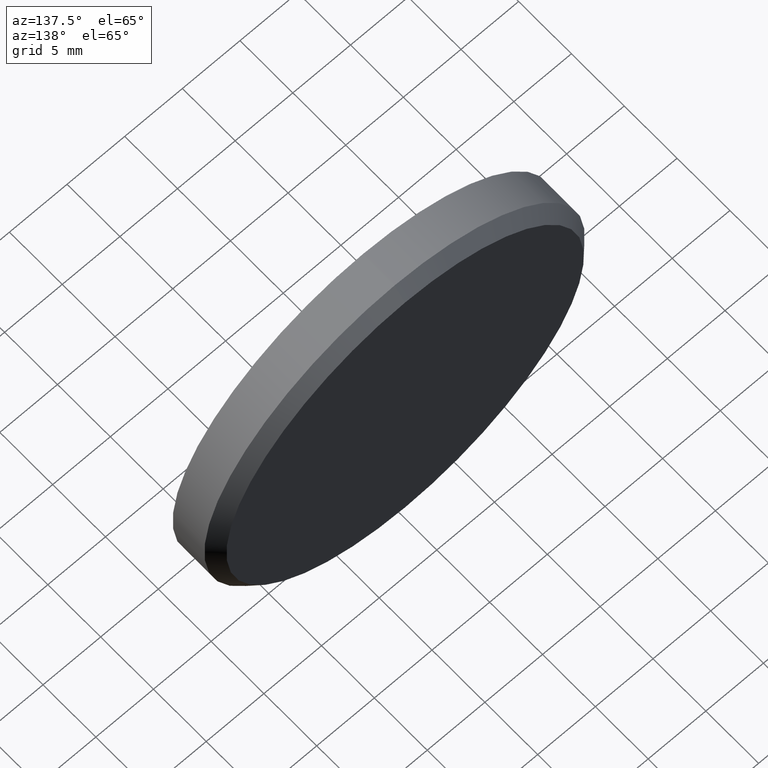
[diagram: clean part render]
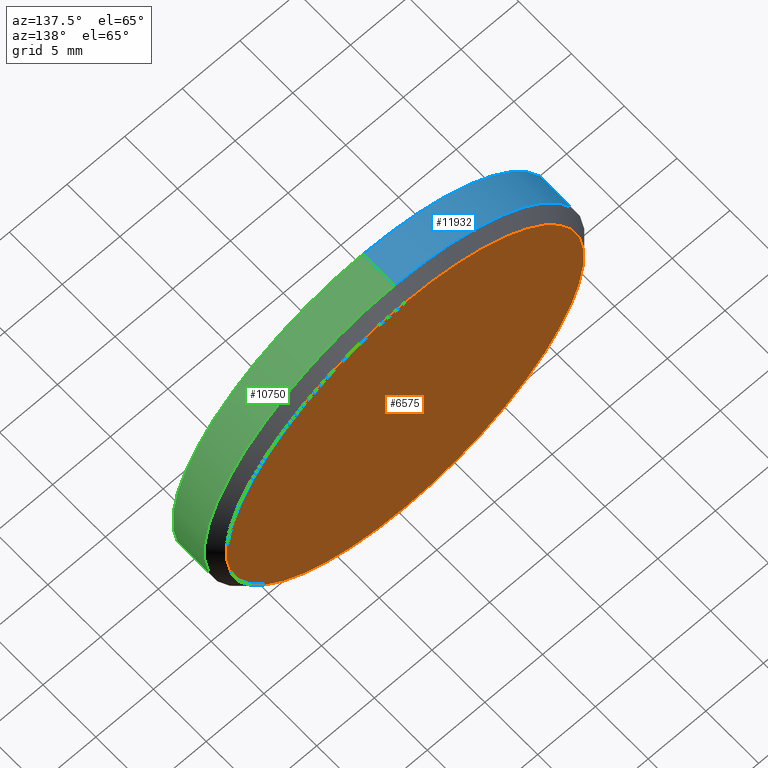
[diagram: same view with three faces highlighted in distinct colors, each labeled with its STEP entity id]
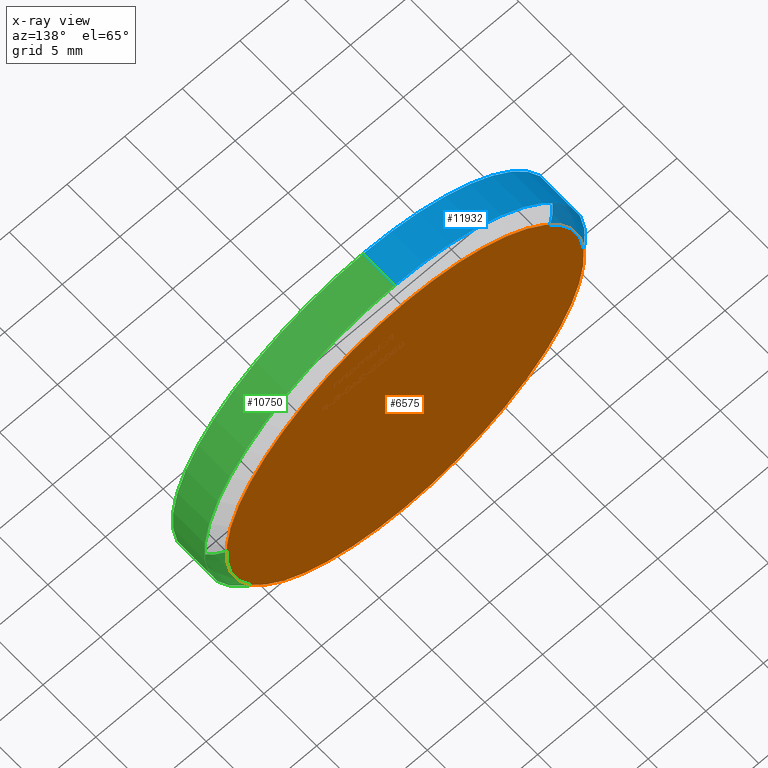
[diagram: x-ray of the same camera — body ghosted, the three highlighted faces saturated]
A machine part, auxiliary view with three faces highlighted in distinct colors.
The next image is the same camera in x-ray (body ghosted, the three faces saturated) — at least one of them is partly hidden behind the body in this view.
Their STEP definitions:

[orange] entity #6575 — the highlighted planar face has unit normal (0, 1, 0).
#866 = EDGE_LOOP ( 'NONE', ( #5701, #6841 ) ) ;
#1632 = FACE_OUTER_BOUND ( 'NONE', #866, .T. ) ;
#2034 = VERTEX_POINT ( 'NONE', #3483 ) ;
#3166 = CIRCLE ( 'NONE', #11136, 15.50000000000000000 ) ;
#3483 = CARTESIAN_POINT ( 'NONE',  ( 0.000000000000000000, 2.000000000000000000, -15.50000000000000000 ) ) ;
#4833 = VERTEX_POINT ( 'NONE', #10451 ) ;
#5102 = EDGE_CURVE ( 'NONE', #2034, #4833, #3166, .T. ) ;
#5701 = ORIENTED_EDGE ( 'NONE', *, *, #5102, .T. ) ;
#6124 = CIRCLE ( 'NONE', #11351, 15.50000000000000000 ) ;
#6575 = ADVANCED_FACE ( 'NONE', ( #1632 ), #13298, .T. ) ;
#6841 = ORIENTED_EDGE ( 'NONE', *, *, #11051, .T. ) ;
#7210 = CARTESIAN_POINT ( 'NONE',  ( 0.000000000000000000, 2.000000000000000000, 0.000000000000000000 ) ) ;
#8338 = DIRECTION ( 'NONE',  ( 0.000000000000000000, -0.000000000000000000, 1.000000000000000000 ) ) ;
#9045 = CARTESIAN_POINT ( 'NONE',  ( 0.000000000000000000, 2.000000000000000000, 0.000000000000000000 ) ) ;
#10272 = DIRECTION ( 'NONE',  ( 0.000000000000000000, 1.000000000000000000, 0.000000000000000000 ) ) ;
#10451 = CARTESIAN_POINT ( 'NONE',  ( 1.959434878635765526E-15, 2.000000000000000000, 15.50000000000000000 ) ) ;
#10667 = DIRECTION ( 'NONE',  ( 0.000000000000000000, 1.000000000000000000, 0.000000000000000000 ) ) ;
#11051 = EDGE_CURVE ( 'NONE', #4833, #2034, #6124, .T. ) ;
#11136 = AXIS2_PLACEMENT_3D ( 'NONE', #9045, #10272, #11490 ) ;
#11351 = AXIS2_PLACEMENT_3D ( 'NONE', #15220, #11505, #13828 ) ;
#11490 = DIRECTION ( 'NONE',  ( 0.000000000000000000, 0.000000000000000000, 1.000000000000000000 ) ) ;
#11505 = DIRECTION ( 'NONE',  ( 0.000000000000000000, 1.000000000000000000, 0.000000000000000000 ) ) ;
#13298 = PLANE ( 'NONE',  #14294 ) ;
#13828 = DIRECTION ( 'NONE',  ( 0.000000000000000000, 0.000000000000000000, 1.000000000000000000 ) ) ;
#14294 = AXIS2_PLACEMENT_3D ( 'NONE', #7210, #10667, #8338 ) ;
#15220 = CARTESIAN_POINT ( 'NONE',  ( 0.000000000000000000, 2.000000000000000000, 0.000000000000000000 ) ) ;

[blue] entity #11932 — the highlighted cylindrical surface (partial cylindrical patch) has radius 16.5 mm, axis along (-0, -1, -0).
#707 = CARTESIAN_POINT ( 'NONE',  ( 2.020667218593133100E-15, 0.9999999999999922284, 16.50000000000000000 ) ) ;
#907 = ORIENTED_EDGE ( 'NONE', *, *, #2067, .T. ) ;
#1052 = ORIENTED_EDGE ( 'NONE', *, *, #12245, .F. ) ;
#1696 = AXIS2_PLACEMENT_3D ( 'NONE', #13502, #13355, #14630 ) ;
#2067 = EDGE_CURVE ( 'NONE', #10124, #15654, #7557, .T. ) ;
#2292 = CARTESIAN_POINT ( 'NONE',  ( 0.000000000000000000, 2.000000000000000000, 0.000000000000000000 ) ) ;
#2557 = ORIENTED_EDGE ( 'NONE', *, *, #4967, .T. ) ;
#2670 = DIRECTION ( 'NONE',  ( -0.000000000000000000, -1.000000000000000000, -0.000000000000000000 ) ) ;
#3009 = AXIS2_PLACEMENT_3D ( 'NONE', #2292, #7020, #9397 ) ;
#3643 = VECTOR ( 'NONE', #12460, 1000.000000000000000 ) ;
#4967 = EDGE_CURVE ( 'NONE', #7832, #10124, #14922, .T. ) ;
#5892 = CARTESIAN_POINT ( 'NONE',  ( 2.020667218593133100E-15, -2.000000000000000000, 16.50000000000000000 ) ) ;
#6367 = CARTESIAN_POINT ( 'NONE',  ( 2.020667218593133100E-15, 2.000000000000000000, 16.50000000000000000 ) ) ;
#6436 = DIRECTION ( 'NONE',  ( 0.000000000000000000, 0.000000000000000000, 1.000000000000000000 ) ) ;
#6480 = CYLINDRICAL_SURFACE ( 'NONE', #3009, 16.50000000000000000 ) ;
#6808 = EDGE_LOOP ( 'NONE', ( #1052, #2557, #907, #8661 ) ) ;
#7020 = DIRECTION ( 'NONE',  ( -0.000000000000000000, -1.000000000000000000, -0.000000000000000000 ) ) ;
#7555 = CARTESIAN_POINT ( 'NONE',  ( 0.000000000000000000, 2.000000000000000000, -16.50000000000000000 ) ) ;
#7557 = LINE ( 'NONE', #7555, #10989 ) ;
#7832 = VERTEX_POINT ( 'NONE', #707 ) ;
#8661 = ORIENTED_EDGE ( 'NONE', *, *, #15160, .T. ) ;
#8762 = DIRECTION ( 'NONE',  ( 0.000000000000000000, 1.000000000000000000, 0.000000000000000000 ) ) ;
#9397 = DIRECTION ( 'NONE',  ( 0.000000000000000000, 0.000000000000000000, -1.000000000000000000 ) ) ;
#9718 = FACE_OUTER_BOUND ( 'NONE', #6808, .T. ) ;
#10071 = CARTESIAN_POINT ( 'NONE',  ( 0.000000000000000000, -2.000000000000000000, -16.50000000000000000 ) ) ;
#10124 = VERTEX_POINT ( 'NONE', #14463 ) ;
#10989 = VECTOR ( 'NONE', #2670, 1000.000000000000000 ) ;
#11282 = VERTEX_POINT ( 'NONE', #5892 ) ;
#11932 = ADVANCED_FACE ( 'NONE', ( #9718 ), #6480, .T. ) ;
#12245 = EDGE_CURVE ( 'NONE', #7832, #11282, #14458, .T. ) ;
#12460 = DIRECTION ( 'NONE',  ( -0.000000000000000000, -1.000000000000000000, -0.000000000000000000 ) ) ;
#12476 = CARTESIAN_POINT ( 'NONE',  ( 0.000000000000000000, -2.000000000000000000, 0.000000000000000000 ) ) ;
#12718 = CIRCLE ( 'NONE', #12889, 16.50000000000000000 ) ;
#12889 = AXIS2_PLACEMENT_3D ( 'NONE', #12476, #8762, #6436 ) ;
#13355 = DIRECTION ( 'NONE',  ( 0.000000000000000000, -1.000000000000000000, 0.000000000000000000 ) ) ;
#13502 = CARTESIAN_POINT ( 'NONE',  ( 0.000000000000000000, 0.9999999999999922284, 0.000000000000000000 ) ) ;
#14458 = LINE ( 'NONE', #6367, #3643 ) ;
#14463 = CARTESIAN_POINT ( 'NONE',  ( 0.000000000000000000, 0.9999999999999922284, -16.50000000000000000 ) ) ;
#14630 = DIRECTION ( 'NONE',  ( 0.000000000000000000, 0.000000000000000000, 1.000000000000000000 ) ) ;
#14922 = CIRCLE ( 'NONE', #1696, 16.50000000000000000 ) ;
#15160 = EDGE_CURVE ( 'NONE', #15654, #11282, #12718, .T. ) ;
#15654 = VERTEX_POINT ( 'NONE', #10071 ) ;

[green] entity #10750 — the highlighted cylindrical surface (partial cylindrical patch) has radius 16.5 mm, axis along (-0, -1, -0).
#34 = CARTESIAN_POINT ( 'NONE',  ( 0.000000000000000000, 0.9999999999999922284, 0.000000000000000000 ) ) ;
#707 = CARTESIAN_POINT ( 'NONE',  ( 2.020667218593133100E-15, 0.9999999999999922284, 16.50000000000000000 ) ) ;
#1014 = DIRECTION ( 'NONE',  ( -0.000000000000000000, -1.000000000000000000, -0.000000000000000000 ) ) ;
#1399 = CIRCLE ( 'NONE', #4664, 16.50000000000000000 ) ;
#1711 = EDGE_LOOP ( 'NONE', ( #10245, #14899, #3673, #14838 ) ) ;
#2067 = EDGE_CURVE ( 'NONE', #10124, #15654, #7557, .T. ) ;
#2081 = DIRECTION ( 'NONE',  ( 0.000000000000000000, 0.000000000000000000, -1.000000000000000000 ) ) ;
#2329 = CARTESIAN_POINT ( 'NONE',  ( 0.000000000000000000, -2.000000000000000000, 0.000000000000000000 ) ) ;
#2670 = DIRECTION ( 'NONE',  ( -0.000000000000000000, -1.000000000000000000, -0.000000000000000000 ) ) ;
#3643 = VECTOR ( 'NONE', #12460, 1000.000000000000000 ) ;
#3673 = ORIENTED_EDGE ( 'NONE', *, *, #11272, .T. ) ;
#4351 = AXIS2_PLACEMENT_3D ( 'NONE', #10625, #1014, #2081 ) ;
#4664 = AXIS2_PLACEMENT_3D ( 'NONE', #2329, #13199, #10822 ) ;
#5310 = EDGE_CURVE ( 'NONE', #10124, #7832, #10177, .T. ) ;
#5892 = CARTESIAN_POINT ( 'NONE',  ( 2.020667218593133100E-15, -2.000000000000000000, 16.50000000000000000 ) ) ;
#5944 = DIRECTION ( 'NONE',  ( 0.000000000000000000, 0.000000000000000000, 1.000000000000000000 ) ) ;
#5969 = AXIS2_PLACEMENT_3D ( 'NONE', #34, #14369, #5944 ) ;
#6367 = CARTESIAN_POINT ( 'NONE',  ( 2.020667218593133100E-15, 2.000000000000000000, 16.50000000000000000 ) ) ;
#7555 = CARTESIAN_POINT ( 'NONE',  ( 0.000000000000000000, 2.000000000000000000, -16.50000000000000000 ) ) ;
#7557 = LINE ( 'NONE', #7555, #10989 ) ;
#7832 = VERTEX_POINT ( 'NONE', #707 ) ;
#8232 = CYLINDRICAL_SURFACE ( 'NONE', #4351, 16.50000000000000000 ) ;
#10071 = CARTESIAN_POINT ( 'NONE',  ( 0.000000000000000000, -2.000000000000000000, -16.50000000000000000 ) ) ;
#10124 = VERTEX_POINT ( 'NONE', #14463 ) ;
#10177 = CIRCLE ( 'NONE', #5969, 16.50000000000000000 ) ;
#10245 = ORIENTED_EDGE ( 'NONE', *, *, #5310, .T. ) ;
#10625 = CARTESIAN_POINT ( 'NONE',  ( 0.000000000000000000, 2.000000000000000000, 0.000000000000000000 ) ) ;
#10750 = ADVANCED_FACE ( 'NONE', ( #11234 ), #8232, .T. ) ;
#10822 = DIRECTION ( 'NONE',  ( 0.000000000000000000, 0.000000000000000000, 1.000000000000000000 ) ) ;
#10989 = VECTOR ( 'NONE', #2670, 1000.000000000000000 ) ;
#11234 = FACE_OUTER_BOUND ( 'NONE', #1711, .T. ) ;
#11272 = EDGE_CURVE ( 'NONE', #11282, #15654, #1399, .T. ) ;
#11282 = VERTEX_POINT ( 'NONE', #5892 ) ;
#12245 = EDGE_CURVE ( 'NONE', #7832, #11282, #14458, .T. ) ;
#12460 = DIRECTION ( 'NONE',  ( -0.000000000000000000, -1.000000000000000000, -0.000000000000000000 ) ) ;
#13199 = DIRECTION ( 'NONE',  ( 0.000000000000000000, 1.000000000000000000, 0.000000000000000000 ) ) ;
#14369 = DIRECTION ( 'NONE',  ( 0.000000000000000000, -1.000000000000000000, 0.000000000000000000 ) ) ;
#14458 = LINE ( 'NONE', #6367, #3643 ) ;
#14463 = CARTESIAN_POINT ( 'NONE',  ( 0.000000000000000000, 0.9999999999999922284, -16.50000000000000000 ) ) ;
#14838 = ORIENTED_EDGE ( 'NONE', *, *, #2067, .F. ) ;
#14899 = ORIENTED_EDGE ( 'NONE', *, *, #12245, .T. ) ;
#15654 = VERTEX_POINT ( 'NONE', #10071 ) ;